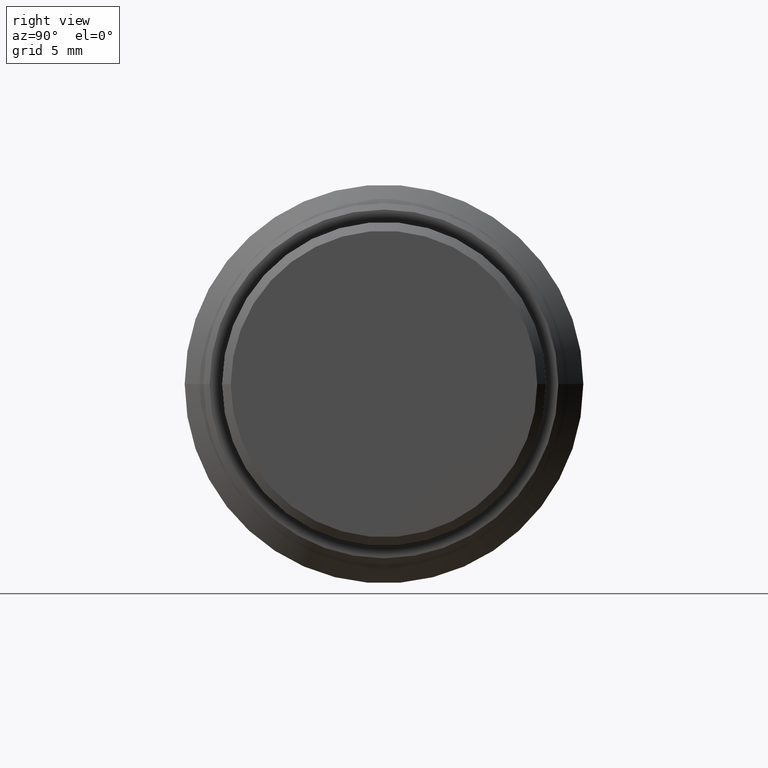
[diagram: clean part render]
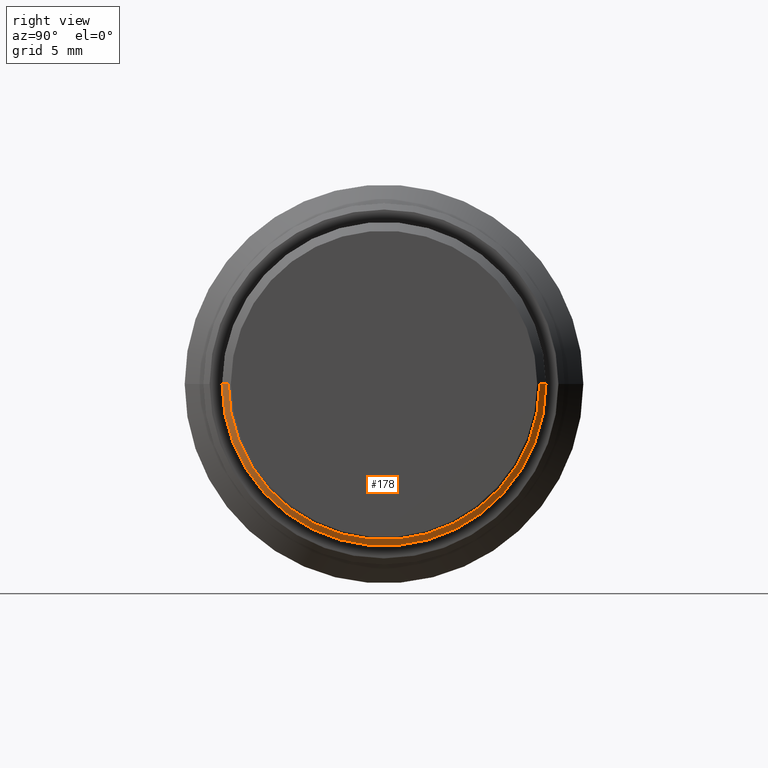
[diagram: same view with one face highlighted and labeled with its STEP entity id]
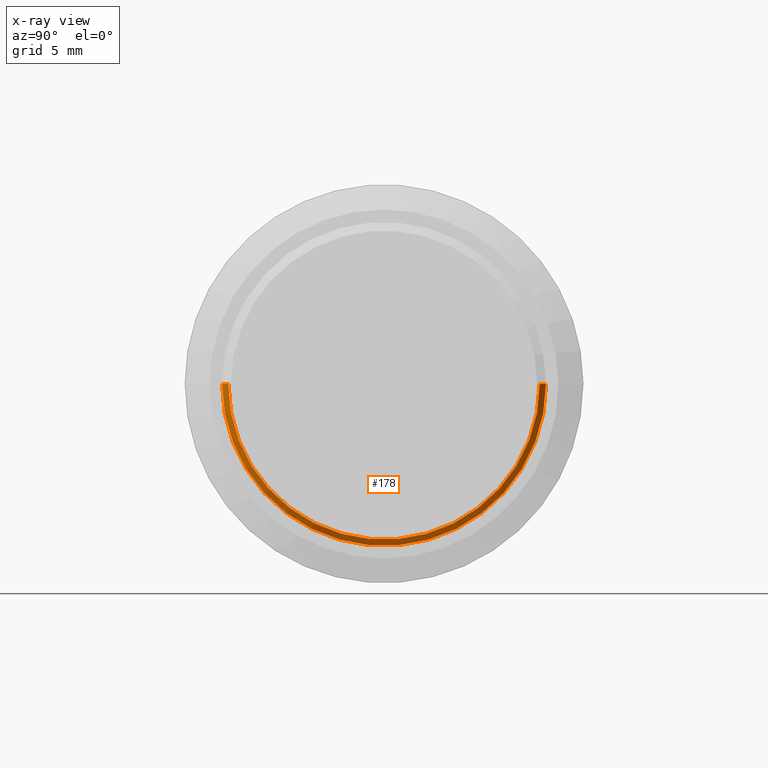
[diagram: x-ray of the same camera — body ghosted, the highlighted face saturated]
A machine part, right view. The second image highlights one B-rep face of the part: STEP entity #178.
The next image is the same camera in x-ray: the body ghosted, the highlighted face saturated — about 0% of this face is hidden behind the body in this view.
In plain terms, the highlighted conical surface has half-angle 45 deg.
Its self-contained STEP definition (entity closure, byte-faithful):
#1 = VERTEX_POINT ( 'NONE', #536 ) ;
#20 = EDGE_CURVE ( 'NONE', #1, #1329, #1228, .T. ) ;
#63 = ORIENTED_EDGE ( 'NONE', *, *, #20, .T. ) ;
#137 = CARTESIAN_POINT ( 'NONE',  ( 27.00000000000000000, -13.00000000000000000, -1.592040838891559884E-15 ) ) ;
#177 = AXIS2_PLACEMENT_3D ( 'NONE', #1243, #543, #1233 ) ;
#178 = ADVANCED_FACE ( 'NONE', ( #1019 ), #617, .T. ) ;
#216 = CARTESIAN_POINT ( 'NONE',  ( 27.00000000000000000, 0.000000000000000000, 0.000000000000000000 ) ) ;
#220 = ORIENTED_EDGE ( 'NONE', *, *, #1265, .T. ) ;
#244 = CARTESIAN_POINT ( 'NONE',  ( 27.00000000000000000, 13.00000000000000000, 0.000000000000000000 ) ) ;
#253 = CARTESIAN_POINT ( 'NONE',  ( 27.00000000000000000, 13.00000000000000000, 0.000000000000000000 ) ) ;
#267 = LINE ( 'NONE', #137, #1300 ) ;
#279 = VERTEX_POINT ( 'NONE', #855 ) ;
#312 = CARTESIAN_POINT ( 'NONE',  ( 27.50000000000000000, 0.000000000000000000, 0.000000000000000000 ) ) ;
#334 = EDGE_CURVE ( 'NONE', #531, #279, #667, .T. ) ;
#348 = CARTESIAN_POINT ( 'NONE',  ( 27.50000000000000000, -12.50000000000000000, 0.000000000000000000 ) ) ;
#531 = VERTEX_POINT ( 'NONE', #348 ) ;
#536 = CARTESIAN_POINT ( 'NONE',  ( 27.00000000000000000, -13.00000000000000000, -1.592040838891559884E-15 ) ) ;
#543 = DIRECTION ( 'NONE',  ( 1.000000000000000000, 0.000000000000000000, 0.000000000000000000 ) ) ;
#558 = DIRECTION ( 'NONE',  ( 0.000000000000000000, 1.000000000000000000, 0.000000000000000000 ) ) ;
#603 = ORIENTED_EDGE ( 'NONE', *, *, #334, .F. ) ;
#617 = CONICAL_SURFACE ( 'NONE', #1462, 13.00000000000000000, 0.7853981633974476129 ) ;
#629 = EDGE_LOOP ( 'NONE', ( #63, #967, #603, #220 ) ) ;
#645 = AXIS2_PLACEMENT_3D ( 'NONE', #312, #1011, #1115 ) ;
#667 = CIRCLE ( 'NONE', #645, 12.50000000000000000 ) ;
#686 = DIRECTION ( 'NONE',  ( -1.000000000000000000, 0.000000000000000000, 0.000000000000000000 ) ) ;
#730 = DIRECTION ( 'NONE',  ( -0.7071067811865474617, -0.7071067811865474617, -8.659560562354911904E-17 ) ) ;
#855 = CARTESIAN_POINT ( 'NONE',  ( 27.50000000000000000, 12.50000000000000000, -1.530808498934190141E-15 ) ) ;
#967 = ORIENTED_EDGE ( 'NONE', *, *, #1307, .F. ) ;
#1011 = DIRECTION ( 'NONE',  ( 1.000000000000000000, 0.000000000000000000, 0.000000000000000000 ) ) ;
#1019 = FACE_OUTER_BOUND ( 'NONE', #629, .T. ) ;
#1115 = DIRECTION ( 'NONE',  ( 0.000000000000000000, 1.000000000000000000, 0.000000000000000000 ) ) ;
#1206 = LINE ( 'NONE', #244, #1234 ) ;
#1228 = CIRCLE ( 'NONE', #177, 13.00000000000000000 ) ;
#1233 = DIRECTION ( 'NONE',  ( 0.000000000000000000, 1.000000000000000000, 0.000000000000000000 ) ) ;
#1234 = VECTOR ( 'NONE', #1303, 1000.000000000000114 ) ;
#1243 = CARTESIAN_POINT ( 'NONE',  ( 27.00000000000000000, 0.000000000000000000, 0.000000000000000000 ) ) ;
#1265 = EDGE_CURVE ( 'NONE', #531, #1, #267, .T. ) ;
#1300 = VECTOR ( 'NONE', #730, 1000.000000000000114 ) ;
#1303 = DIRECTION ( 'NONE',  ( -0.7071067811865474617, 0.7071067811865474617, 0.000000000000000000 ) ) ;
#1307 = EDGE_CURVE ( 'NONE', #279, #1329, #1206, .T. ) ;
#1329 = VERTEX_POINT ( 'NONE', #253 ) ;
#1462 = AXIS2_PLACEMENT_3D ( 'NONE', #216, #686, #558 ) ;